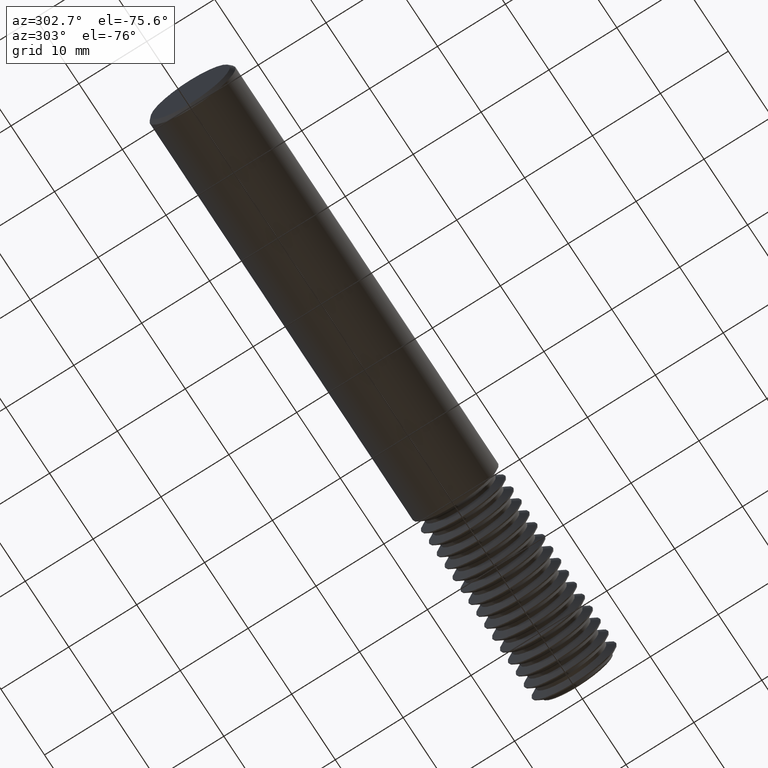
[diagram: clean part render]
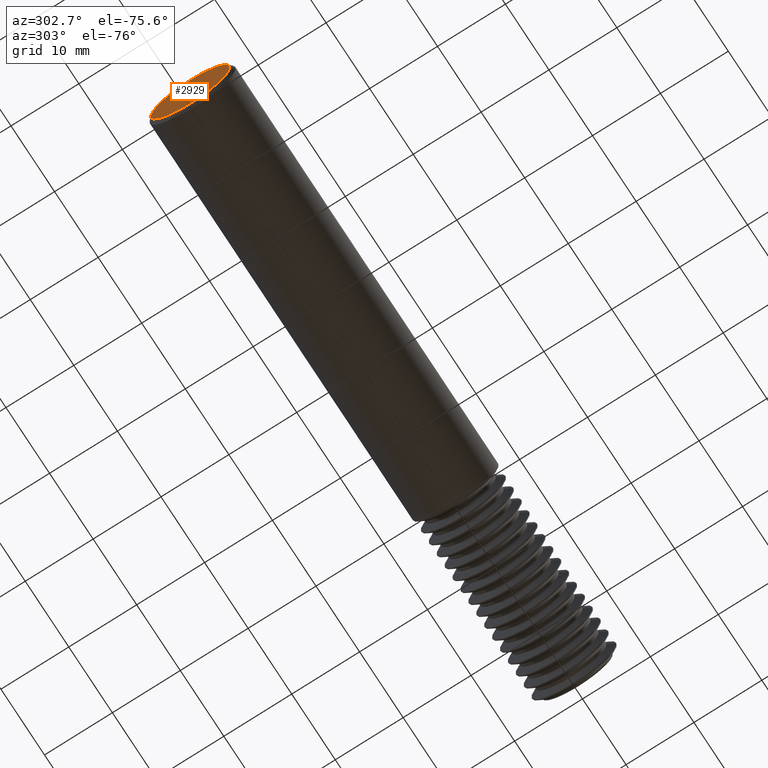
[diagram: same view with one face highlighted and labeled with its STEP entity id]
A machine part, auxiliary view. The second image highlights one B-rep face of the part: STEP entity #2929.
In plain terms, the highlighted planar face has unit normal (1, 0, 0).
Its self-contained STEP definition (entity closure, byte-faithful):
#228 = ORIENTED_EDGE ( 'NONE', *, *, #2911, .T. ) ;
#240 = CARTESIAN_POINT ( 'NONE',  ( 0.000000000000000000, 0.000000000000000000, 0.000000000000000000 ) ) ;
#271 = CIRCLE ( 'NONE', #1724, 0.2298500000000002763 ) ;
#481 = AXIS2_PLACEMENT_3D ( 'NONE', #1058, #2081, #3100 ) ;
#862 = EDGE_LOOP ( 'NONE', ( #2513, #228 ) ) ;
#1058 = CARTESIAN_POINT ( 'NONE',  ( 0.000000000000000000, 0.000000000000000000, 0.000000000000000000 ) ) ;
#1228 = DIRECTION ( 'NONE',  ( 1.000000000000000000, 0.000000000000000000, 0.000000000000000000 ) ) ;
#1413 = FACE_OUTER_BOUND ( 'NONE', #862, .T. ) ;
#1724 = AXIS2_PLACEMENT_3D ( 'NONE', #1904, #2416, #2474 ) ;
#1904 = CARTESIAN_POINT ( 'NONE',  ( 0.000000000000000000, 0.000000000000000000, 0.000000000000000000 ) ) ;
#1939 = AXIS2_PLACEMENT_3D ( 'NONE', #240, #1228, #2044 ) ;
#2044 = DIRECTION ( 'NONE',  ( 0.000000000000000000, 0.000000000000000000, -1.000000000000000000 ) ) ;
#2059 = CARTESIAN_POINT ( 'NONE',  ( 0.000000000000000000, 0.000000000000000000, -0.2298500000000002763 ) ) ;
#2081 = DIRECTION ( 'NONE',  ( -1.000000000000000000, -0.000000000000000000, -0.000000000000000000 ) ) ;
#2416 = DIRECTION ( 'NONE',  ( -1.000000000000000000, -0.000000000000000000, -0.000000000000000000 ) ) ;
#2435 = PLANE ( 'NONE',  #1939 ) ;
#2474 = DIRECTION ( 'NONE',  ( 0.000000000000000000, 0.000000000000000000, -1.000000000000000000 ) ) ;
#2513 = ORIENTED_EDGE ( 'NONE', *, *, #2770, .T. ) ;
#2770 = EDGE_CURVE ( 'NONE', #2983, #2876, #3116, .T. ) ;
#2876 = VERTEX_POINT ( 'NONE', #3208 ) ;
#2911 = EDGE_CURVE ( 'NONE', #2876, #2983, #271, .T. ) ;
#2929 = ADVANCED_FACE ( 'NONE', ( #1413 ), #2435, .F. ) ;
#2983 = VERTEX_POINT ( 'NONE', #2059 ) ;
#3100 = DIRECTION ( 'NONE',  ( 0.000000000000000000, 0.000000000000000000, -1.000000000000000000 ) ) ;
#3116 = CIRCLE ( 'NONE', #481, 0.2298500000000002763 ) ;
#3208 = CARTESIAN_POINT ( 'NONE',  ( 0.000000000000000000, 2.937315347754928730E-17, 0.2298500000000002763 ) ) ;